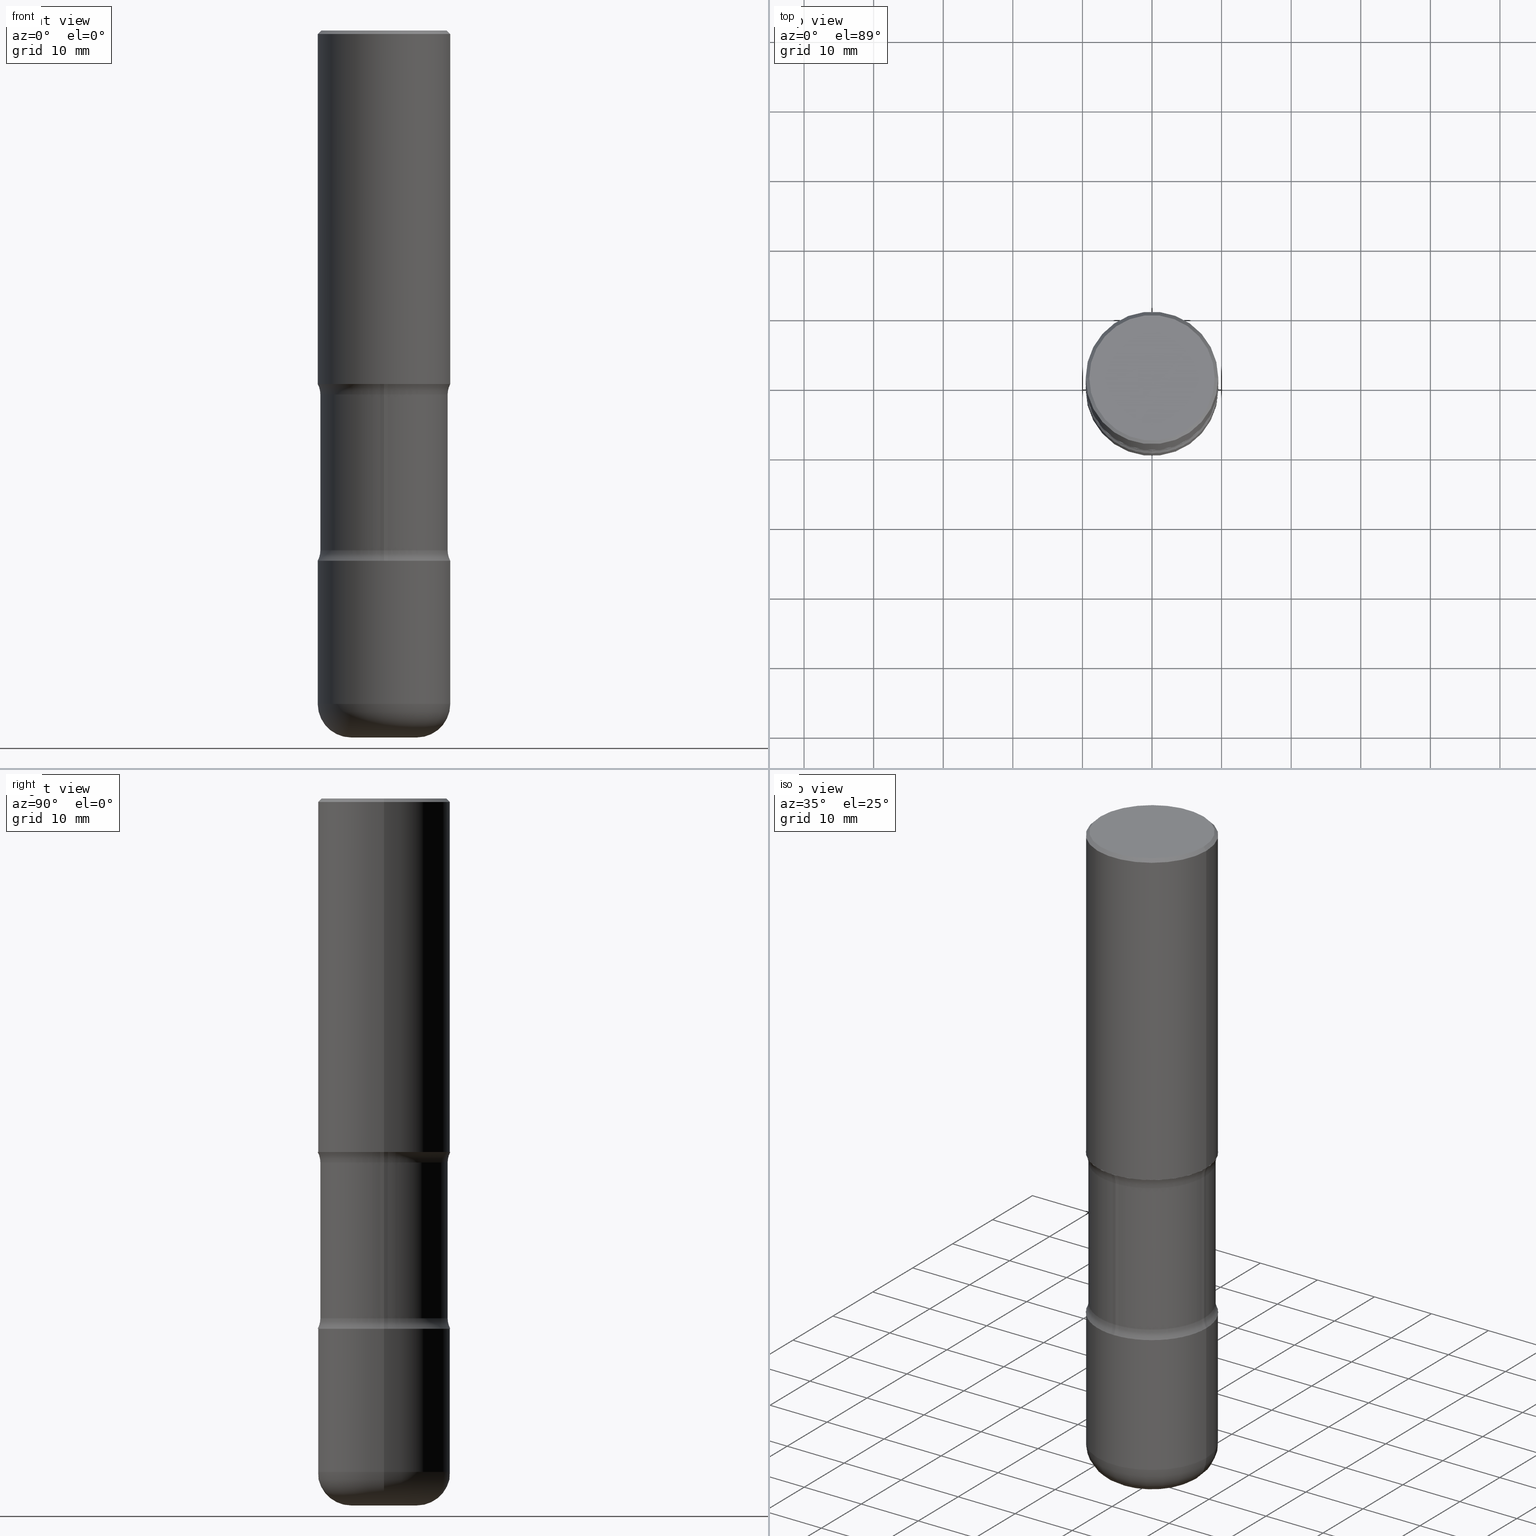
[diagram: canonical four-view strip — front | top / right | iso, engineering-drawing reading convention]
A machine part, canonical four-view strip (front | top / right | iso — engineering-drawing reading convention). The complete STEP part file that produces these views, byte-faithful:
ISO-10303-21;
HEADER;
FILE_DESCRIPTION (( 'STEP AP203' ),
    '1' );
FILE_NAME ('36251.STEP',
    '2023-03-11T07:12:51',
    ( '' ),
    ( '' ),
    'SwSTEP 2.0',
    'SolidWorks 2022',
    '' );
FILE_SCHEMA (( 'CONFIG_CONTROL_DESIGN' ));
ENDSEC;

DATA;
#1 = EDGE_CURVE ( 'NONE', #185, #135, #251, .T. ) ;
#2 = CARTESIAN_POINT ( 'NONE',  ( 2.478951750578622237E-15, 0.3549999999999997047, -1.233073106554165014E-15 ) ) ;
#3 = AXIS2_PLACEMENT_3D ( 'NONE', #378, #122, #369 ) ;
#4 = CIRCLE ( 'NONE', #597, 0.1250000000000001110 ) ;
#5 = CARTESIAN_POINT ( 'NONE',  ( 5.036129278209386779E-29, -7.190257896725955672E-15, -2.059371710435190295 ) ) ;
#6 = AXIS2_PLACEMENT_3D ( 'NONE', #227, #437, #101 ) ;
#7 = LOCAL_TIME ( 2, 12, 51.00000000000000000, #295 ) ;
#8 = ORIENTED_EDGE ( 'NONE', *, *, #184, .F. ) ;
#9 = CYLINDRICAL_SURFACE ( 'NONE', #773, 0.3599999999999999312 ) ;
#10 = CARTESIAN_POINT ( 'NONE',  ( -0.1850000000000001088, -1.198803983983620001E-14, -3.810000000000000053 ) ) ;
#11 = EDGE_CURVE ( 'NONE', #777, #593, #586, .T. ) ;
#12 = DIRECTION ( 'NONE',  ( 1.000000000000000000, -6.982962677686266711E-15, 0.000000000000000000 ) ) ;
#13 = ORIENTED_EDGE ( 'NONE', *, *, #391, .F. ) ;
#14 = CARTESIAN_POINT ( 'NONE',  ( 4.888029293089666332E-29, -6.987127556427373647E-15, -2.000000000000000000 ) ) ;
#15 = DIRECTION ( 'NONE',  ( -1.000000000000000000, 6.982962677686266711E-15, 0.000000000000000000 ) ) ;
#16 = CARTESIAN_POINT ( 'NONE',  ( 5.036129278209386779E-29, -7.190257896725955672E-15, -2.059371710435190295 ) ) ;
#17 = PLANE ( 'NONE',  #662 ) ;
#18 = EDGE_LOOP ( 'NONE', ( #125, #375, #89, #467 ) ) ;
#19 = CARTESIAN_POINT ( 'NONE',  ( 0.1850000000000001088, -1.459439199636434728E-14, -3.810000000000000053 ) ) ;
#20 = AXIS2_PLACEMENT_3D ( 'NONE', #103, #428, #364 ) ;
#21 = AXIS2_PLACEMENT_3D ( 'NONE', #52, #254, #134 ) ;
#22 = ORIENTED_EDGE ( 'NONE', *, *, #87, .T. ) ;
#23 = CARTESIAN_POINT ( 'NONE',  ( 4.890937612370273194E-29, -6.982962677686291165E-15, -2.000000000000000000 ) ) ;
#24 = EDGE_LOOP ( 'NONE', ( #193, #304, #164, #190 ) ) ;
#25 = ADVANCED_FACE ( 'NONE', ( #505 ), #751, .F. ) ;
#26 = ORIENTED_EDGE ( 'NONE', *, *, #626, .F. ) ;
#27 = EDGE_LOOP ( 'NONE', ( #113, #22 ) ) ;
#28 = CARTESIAN_POINT ( 'NONE',  ( 2.618611004132398926E-15, 0.3749999999999931166, -2.000000000000001332 ) ) ;
#29 = DIRECTION ( 'NONE',  ( -1.000000000000000000, 7.105427357601003436E-15, 0.000000000000000000 ) ) ;
#30 = CC_DESIGN_PERSON_AND_ORGANIZATION_ASSIGNMENT ( #438, #48, ( #637 ) ) ;
#31 = ORIENTED_EDGE ( 'NONE', *, *, #78, .F. ) ;
#32 = DIRECTION ( 'NONE',  ( -2.445468806185136597E-29, 3.491481338843145583E-15, 1.000000000000000000 ) ) ;
#33 = AXIS2_PLACEMENT_3D ( 'NONE', #474, #388, #536 ) ;
#34 = AXIS2_PLACEMENT_3D ( 'NONE', #98, #413, #729 ) ;
#35 = EDGE_CURVE ( 'NONE', #432, #510, #237, .T. ) ;
#36 = CYLINDRICAL_SURFACE ( 'NONE', #679, 0.3750000000000000555 ) ;
#37 = DIRECTION ( 'NONE',  ( 6.982962677686265133E-15, 1.000000000000000000, -3.794233324533699901E-15 ) ) ;
#38 = CALENDAR_DATE ( 2023, 11, 3 ) ;
#39 = ORIENTED_EDGE ( 'NONE', *, *, #147, .T. ) ;
#40 = AXIS2_PLACEMENT_3D ( 'NONE', #733, #421, #231 ) ;
#41 = CIRCLE ( 'NONE', #786, 0.1249999999999999584 ) ;
#42 = AXIS2_PLACEMENT_3D ( 'NONE', #303, #425, #99 ) ;
#43 = EDGE_CURVE ( 'NONE', #538, #443, #95, .T. ) ;
#44 = ORIENTED_EDGE ( 'NONE', *, *, #770, .F. ) ;
#45 = DESIGN_CONTEXT ( 'detailed design', #482, 'design' ) ;
#46 = DIRECTION ( 'NONE',  ( 2.448377125465743738E-29, -3.487316460102062312E-15, -1.000000000000000000 ) ) ;
#47 = ORIENTED_EDGE ( 'NONE', *, *, #683, .F. ) ;
#48 = PERSON_AND_ORGANIZATION_ROLE ( 'creator' ) ;
#49 = ORIENTED_EDGE ( 'NONE', *, *, #630, .T. ) ;
#50 = PERSON_AND_ORGANIZATION ( #798, #433 ) ;
#51 =( NAMED_UNIT ( * ) PLANE_ANGLE_UNIT ( ) SI_UNIT ( $, .RADIAN. ) );
#52 = CARTESIAN_POINT ( 'NONE',  ( 5.036129278209386779E-29, -7.190257896725955672E-15, -2.059371710435190295 ) ) ;
#53 = VECTOR ( 'NONE', #420, 39.37007874015748143 ) ;
#54 = AXIS2_PLACEMENT_3D ( 'NONE', #745, #178, #444 ) ;
#55 = EDGE_LOOP ( 'NONE', ( #271, #352 ) ) ;
#56 = EDGE_CURVE ( 'NONE', #135, #538, #582, .T. ) ;
#57 = DIRECTION ( 'NONE',  ( 1.000000000000000000, -6.982962677686265133E-15, 0.000000000000000000 ) ) ;
#58 = DIRECTION ( 'NONE',  ( -1.000000000000000000, 7.105427357601001859E-15, 0.000000000000000000 ) ) ;
#59 = ORIENTED_EDGE ( 'NONE', *, *, #162, .T. ) ;
#60 = DIRECTION ( 'NONE',  ( 1.000000000000000000, -6.982962677686265922E-15, 4.876231632511992107E-29 ) ) ;
#61 = CARTESIAN_POINT ( 'NONE',  ( 0.000000000000000000, 0.000000000000000000, 0.000000000000000000 ) ) ;
#62 = CIRCLE ( 'NONE', #690, 0.3599999999999998757 ) ;
#63 = CARTESIAN_POINT ( 'NONE',  ( 4.888029293089666332E-29, -6.987127556427373647E-15, -2.000000000000000000 ) ) ;
#64 = ADVANCED_FACE ( 'NONE', ( #68 ), #208, .F. ) ;
#65 = DIRECTION ( 'NONE',  ( 2.448377125465743738E-29, -3.487316460102062312E-15, -1.000000000000000000 ) ) ;
#66 = CIRCLE ( 'NONE', #530, 0.3750000000000000555 ) ;
#67 = FACE_OUTER_BOUND ( 'NONE', #615, .T. ) ;
#68 = FACE_OUTER_BOUND ( 'NONE', #649, .T. ) ;
#69 = VERTEX_POINT ( 'NONE', #768 ) ;
#70 = LINE ( 'NONE', #445, #517 ) ;
#71 = ORIENTED_EDGE ( 'NONE', *, *, #371, .T. ) ;
#72 = DIRECTION ( 'NONE',  ( 2.445468806185136597E-29, -3.491481338843145583E-15, -1.000000000000000000 ) ) ;
#73 = EDGE_LOOP ( 'NONE', ( #117, #108 ) ) ;
#74 = CARTESIAN_POINT ( 'NONE',  ( -0.1850000000000001366, -1.164471496805420332E-14, -4.000000000000000888 ) ) ;
#75 = DATE_TIME_ROLE ( 'classification_date' ) ;
#76 = ORIENTED_EDGE ( 'NONE', *, *, #429, .F. ) ;
#77 = DIRECTION ( 'NONE',  ( -2.445468806185136597E-29, 3.491481338843145583E-15, 1.000000000000000000 ) ) ;
#78 = EDGE_CURVE ( 'NONE', #244, #480, #713, .T. ) ;
#79 = PERSON_AND_ORGANIZATION ( #798, #433 ) ;
#80 = ORIENTED_EDGE ( 'NONE', *, *, #11, .T. ) ;
#81 = CARTESIAN_POINT ( 'NONE',  ( 7.191214752716296204E-29, -1.026714879748977264E-14, -2.940628289564810149 ) ) ;
#82 = AXIS2_PLACEMENT_3D ( 'NONE', #739, #439, #799 ) ;
#83 = AXIS2_PLACEMENT_3D ( 'NONE', #503, #607, #181 ) ;
#84 = DIRECTION ( 'NONE',  ( -2.445468806185136597E-29, 3.491481338843145583E-15, 1.000000000000000000 ) ) ;
#85 = COORDINATED_UNIVERSAL_TIME_OFFSET ( 5, 0, .BEHIND. ) ;
#86 = SECURITY_CLASSIFICATION ( '', '', #619 ) ;
#87 = EDGE_CURVE ( 'NONE', #464, #749, #198, .T. ) ;
#88 = CARTESIAN_POINT ( 'NONE',  ( 5.036129278209386779E-29, -7.190257896725955672E-15, -2.059371710435190295 ) ) ;
#89 = ORIENTED_EDGE ( 'NONE', *, *, #222, .T. ) ;
#90 = APPROVAL_ROLE ( '' ) ;
#91 = DIRECTION ( 'NONE',  ( 2.445468806185136597E-29, -3.491481338843145583E-15, -1.000000000000000000 ) ) ;
#92 = DIRECTION ( 'NONE',  ( 1.000000000000000000, -6.982962677686270655E-15, 0.000000000000000000 ) ) ;
#93 = CYLINDRICAL_SURFACE ( 'NONE', #83, 0.3599999999999999312 ) ;
#94 = ADVANCED_FACE ( 'NONE', ( #652 ), #17, .F. ) ;
#95 = CIRCLE ( 'NONE', #688, 0.3749999999999996669 ) ;
#96 = CIRCLE ( 'NONE', #199, 0.1900000000000001132 ) ;
#97 = CIRCLE ( 'NONE', #501, 0.3750000000000000555 ) ;
#98 = CARTESIAN_POINT ( 'NONE',  ( 4.890937612370273194E-29, -6.982962677686291165E-15, -2.000000000000000000 ) ) ;
#99 = DIRECTION ( 'NONE',  ( 1.000000000000000000, -6.982962677686266711E-15, 0.000000000000000000 ) ) ;
#100 = LINE ( 'NONE', #785, #528 ) ;
#101 = DIRECTION ( 'NONE',  ( 1.000000000000000000, -6.982962677686266711E-15, 0.000000000000000000 ) ) ;
#102 = DATE_AND_TIME ( #669, #7 ) ;
#103 = CARTESIAN_POINT ( 'NONE',  ( 0.000000000000000000, 0.000000000000000000, 0.000000000000000000 ) ) ;
#104 = ORIENTED_EDGE ( 'NONE', *, *, #651, .T. ) ;
#105 = FACE_OUTER_BOUND ( 'NONE', #55, .T. ) ;
#106 = ADVANCED_FACE ( 'NONE', ( #270 ), #252, .F. ) ;
#107 = CARTESIAN_POINT ( 'NONE',  ( 0.3749999999999996669, -2.642516375941185662E-15, -0.02000000000000007674 ) ) ;
#108 = ORIENTED_EDGE ( 'NONE', *, *, #643, .F. ) ;
#109 = AXIS2_PLACEMENT_3D ( 'NONE', #775, #219, #481 ) ;
#110 = VECTOR ( 'NONE', #631, 39.37007874015748143 ) ;
#111 = FACE_OUTER_BOUND ( 'NONE', #337, .T. ) ;
#112 = CARTESIAN_POINT ( 'NONE',  ( 1.060475785271074914E-27, -1.514078366162024710E-13, -43.36492792665745100 ) ) ;
#113 = ORIENTED_EDGE ( 'NONE', *, *, #764, .T. ) ;
#114 = CARTESIAN_POINT ( 'NONE',  ( -3.131554243005659264E-46, 4.471029511141341874E-32, 1.280553747030123384E-17 ) ) ;
#115 = CARTESIAN_POINT ( 'NONE',  ( 0.4849999999999998757, -1.365388569616761104E-14, -2.940628289564810149 ) ) ;
#116 = PERSON_AND_ORGANIZATION_ROLE ( 'design_supplier' ) ;
#117 = ORIENTED_EDGE ( 'NONE', *, *, #595, .F. ) ;
#118 = EDGE_LOOP ( 'NONE', ( #435, #328, #131, #315 ) ) ;
#119 = ORIENTED_EDGE ( 'NONE', *, *, #429, .T. ) ;
#120 = ADVANCED_FACE ( 'NONE', ( #763 ), #310, .F. ) ;
#121 = ORIENTED_EDGE ( 'NONE', *, *, #272, .F. ) ;
#122 = DIRECTION ( 'NONE',  ( 2.448377125465743738E-29, -3.487316460102062312E-15, -1.000000000000000000 ) ) ;
#123 = APPROVAL_DATE_TIME ( #153, #290 ) ;
#124 = CIRCLE ( 'NONE', #692, 0.1249999999999999584 ) ;
#125 = ORIENTED_EDGE ( 'NONE', *, *, #147, .F. ) ;
#126 = DIRECTION ( 'NONE',  ( 1.000000000000000000, -6.982962677686265922E-15, 4.876176775795935793E-29 ) ) ;
#127 = CARTESIAN_POINT ( 'NONE',  ( -0.4849999999999998757, -3.744125628289471443E-15, -2.059371710435190295 ) ) ;
#128 = CARTESIAN_POINT ( 'NONE',  ( -3.131554243005659264E-46, 4.471029511141341874E-32, 1.280553747030123384E-17 ) ) ;
#129 = ADVANCED_FACE ( 'NONE', ( #265, #392 ), #641, .F. ) ;
#130 = DIRECTION ( 'NONE',  ( 0.9993908270190957621, -6.978169709227539121E-15, -0.03489949670250019204 ) ) ;
#131 = ORIENTED_EDGE ( 'NONE', *, *, #683, .T. ) ;
#132 = EDGE_LOOP ( 'NONE', ( #803, #744 ) ) ;
#133 = DIRECTION ( 'NONE',  ( 1.000000000000000000, -6.982962677686265133E-15, 4.883557194083112340E-29 ) ) ;
#134 = DIRECTION ( 'NONE',  ( 1.000000000000000000, -6.982962677686265133E-15, 4.883557194083112340E-29 ) ) ;
#135 = VERTEX_POINT ( 'NONE', #191 ) ;
#136 = AXIS2_PLACEMENT_3D ( 'NONE', #587, #91, #756 ) ;
#137 = FACE_OUTER_BOUND ( 'NONE', #18, .T. ) ;
#138 = DIRECTION ( 'NONE',  ( -6.982962677686265133E-15, -1.000000000000000000, 0.000000000000000000 ) ) ;
#139 = EDGE_LOOP ( 'NONE', ( #539, #44 ) ) ;
#140 = CARTESIAN_POINT ( 'NONE',  ( -3.327341528919141311E-15, -0.4850000000000070366, -2.059371710435188518 ) ) ;
#141 = CARTESIAN_POINT ( 'NONE',  ( 0.000000000000000000, 0.000000000000000000, 0.000000000000000000 ) ) ;
#142 = EDGE_CURVE ( 'NONE', #593, #777, #448, .T. ) ;
#143 = DIRECTION ( 'NONE',  ( -2.445468806185136597E-29, 3.491481338843145583E-15, 1.000000000000000000 ) ) ;
#144 = EDGE_LOOP ( 'NONE', ( #723, #241, #121, #534 ) ) ;
#145 = DIRECTION ( 'NONE',  ( 1.000000000000000000, -6.982962677686267499E-15, 0.000000000000000000 ) ) ;
#146 = ORIENTED_EDGE ( 'NONE', *, *, #667, .T. ) ;
#147 = EDGE_CURVE ( 'NONE', #368, #410, #715, .T. ) ;
#148 = CARTESIAN_POINT ( 'NONE',  ( 4.890937612370292426E-31, -6.982962677686317493E-17, -0.02000000000000007674 ) ) ;
#149 = AXIS2_PLACEMENT_3D ( 'NONE', #211, #470, #714 ) ;
#150 = AXIS2_PLACEMENT_3D ( 'NONE', #621, #314, #802 ) ;
#151 = AXIS2_PLACEMENT_3D ( 'NONE', #157, #414, #37 ) ;
#152 = APPROVAL_STATUS ( 'not_yet_approved' ) ;
#153 = DATE_AND_TIME ( #776, #353 ) ;
#154 = ADVANCED_FACE ( 'NONE', ( #320 ), #9, .T. ) ;
#155 = VERTEX_POINT ( 'NONE', #74 ) ;
#156 = PLANE ( 'NONE',  #34 ) ;
#157 = CARTESIAN_POINT ( 'NONE',  ( 5.033393630818961472E-29, -7.194175499492426092E-15, -2.059371710435190295 ) ) ;
#158 = EDGE_LOOP ( 'NONE', ( #562, #533, #792, #485 ) ) ;
#159 = CIRCLE ( 'NONE', #288, 0.3599999999999999867 ) ;
#160 = CIRCLE ( 'NONE', #42, 0.3750000000000000555 ) ;
#161 = APPLICATION_PROTOCOL_DEFINITION ( 'international standard', 'config_control_design', 1994, #482 ) ;
#162 = EDGE_CURVE ( 'NONE', #794, #155, #319, .T. ) ;
#163 = CARTESIAN_POINT ( 'NONE',  ( 0.3750000000000000555, -9.601573681818640393E-15, -2.000000000000000000 ) ) ;
#164 = ORIENTED_EDGE ( 'NONE', *, *, #520, .T. ) ;
#165 = LINE ( 'NONE', #664, #229 ) ;
#166 = CARTESIAN_POINT ( 'NONE',  ( -0.3599999999999999867, -7.759551853091235175E-15, -2.940628289564810149 ) ) ;
#167 = CARTESIAN_POINT ( 'NONE',  ( 7.191214752716296204E-29, -1.026714879748977264E-14, -2.940628289564810149 ) ) ;
#168 = DATE_TIME_ROLE ( 'creation_date' ) ;
#169 = CARTESIAN_POINT ( 'NONE',  ( 4.890937612370292426E-31, -6.982962677686317493E-17, -0.02000000000000007674 ) ) ;
#170 = VECTOR ( 'NONE', #632, 39.37007874015748143 ) ;
#171 = ORIENTED_EDGE ( 'NONE', *, *, #43, .F. ) ;
#172 = TOROIDAL_SURFACE ( 'NONE', #82, 0.4849999999999998757, 0.1249999999999999584 ) ;
#173 = AXIS2_PLACEMENT_3D ( 'NONE', #88, #347, #145 ) ;
#174 = FACE_OUTER_BOUND ( 'NONE', #509, .T. ) ;
#175 = CARTESIAN_POINT ( 'NONE',  ( 3.386736898677909800E-15, 0.4849999999999896616, -2.940628289564811926 ) ) ;
#176 = EDGE_CURVE ( 'NONE', #368, #443, #292, .T. ) ;
#177 = EDGE_CURVE ( 'NONE', #366, #460, #100, .T. ) ;
#178 = DIRECTION ( 'NONE',  ( 2.445468806185136597E-29, -3.491481338843145583E-15, -1.000000000000000000 ) ) ;
#179 = PRODUCT_RELATED_PRODUCT_CATEGORY ( 'detail', '', ( #318 ) ) ;
#180 = FACE_OUTER_BOUND ( 'NONE', #613, .T. ) ;
#181 = DIRECTION ( 'NONE',  ( 6.982962677686265133E-15, 1.000000000000000000, -3.035386659626959526E-15 ) ) ;
#182 = CIRCLE ( 'NONE', #499, 0.1249999999999999584 ) ;
#183 = AXIS2_PLACEMENT_3D ( 'NONE', #167, #426, #610 ) ;
#184 = EDGE_CURVE ( 'NONE', #706, #442, #724, .T. ) ;
#185 = VERTEX_POINT ( 'NONE', #163 ) ;
#186 = DIRECTION ( 'NONE',  ( -1.000000000000000000, 6.982962677686265922E-15, -4.876176775795935793E-29 ) ) ;
#187 = DIRECTION ( 'NONE',  ( 1.000000000000000000, -6.982962677686264344E-15, 0.000000000000000000 ) ) ;
#188 = FACE_OUTER_BOUND ( 'NONE', #332, .T. ) ;
#189 = PERSON_AND_ORGANIZATION ( #798, #433 ) ;
#190 = ORIENTED_EDGE ( 'NONE', *, *, #667, .F. ) ;
#191 = CARTESIAN_POINT ( 'NONE',  ( -0.3749999999999999445, -8.618608931312003514E-16, -2.000000000000000000 ) ) ;
#192 = CARTESIAN_POINT ( 'NONE',  ( 7.191214752716296204E-29, -1.026714879748977264E-14, -2.940628289564810149 ) ) ;
#193 = ORIENTED_EDGE ( 'NONE', *, *, #531, .F. ) ;
#194 = DIRECTION ( 'NONE',  ( 7.105427357601001859E-15, 1.000000000000000000, -3.491481338843145583E-15 ) ) ;
#195 = ORIENTED_EDGE ( 'NONE', *, *, #707, .T. ) ;
#196 = DIRECTION ( 'NONE',  ( -2.445468806185136597E-29, 3.491481338843145583E-15, 1.000000000000000000 ) ) ;
#197 = ORIENTED_EDGE ( 'NONE', *, *, #1, .T. ) ;
#198 = CIRCLE ( 'NONE', #296, 0.1475000000000001033 ) ;
#199 = AXIS2_PLACEMENT_3D ( 'NONE', #10, #194, #29 ) ;
#200 = CARTESIAN_POINT ( 'NONE',  ( -3.327341528919120012E-15, -0.4850000000000101452, -2.940628289564808373 ) ) ;
#201 = CIRCLE ( 'NONE', #173, 0.3599999999999998757 ) ;
#202 = CC_DESIGN_APPROVAL ( #671, ( #556 ) ) ;
#203 = EDGE_LOOP ( 'NONE', ( #596, #540, #264, #639 ) ) ;
#204 = CARTESIAN_POINT ( 'NONE',  ( -7.161073312030320646E-28, -1.305247730850476631E-13, -4.000000000000000000 ) ) ;
#205 = ORIENTED_EDGE ( 'NONE', *, *, #35, .F. ) ;
#206 = FACE_OUTER_BOUND ( 'NONE', #209, .T. ) ;
#207 = ADVANCED_FACE ( 'NONE', ( #105 ), #716, .F. ) ;
#208 = PLANE ( 'NONE',  #33 ) ;
#209 = EDGE_LOOP ( 'NONE', ( #59, #276, #213, #767 ) ) ;
#210 = DIRECTION ( 'NONE',  ( 1.000000000000000000, -6.982962677686266711E-15, 0.000000000000000000 ) ) ;
#211 = CARTESIAN_POINT ( 'NONE',  ( 9.317236151565370389E-29, -1.330254390099238573E-14, -3.810000000000000053 ) ) ;
#212 = MANIFOLD_SOLID_BREP ( 'Body-Move/Copy2[4]', #678 ) ;
#213 = ORIENTED_EDGE ( 'NONE', *, *, #658, .F. ) ;
#214 = ORIENTED_EDGE ( 'NONE', *, *, #717, .T. ) ;
#215 = VECTOR ( 'NONE', #279, 39.37007874015748143 ) ;
#216 = ORIENTED_EDGE ( 'NONE', *, *, #550, .F. ) ;
#217 = AXIS2_PLACEMENT_3D ( 'NONE', #508, #32, #273 ) ;
#218 = EDGE_LOOP ( 'NONE', ( #31, #214, #476, #504 ) ) ;
#219 = DIRECTION ( 'NONE',  ( 2.438088387897960049E-29, -3.491481338843145188E-15, -1.000000000000000000 ) ) ;
#220 = ADVANCED_FACE ( 'NONE', ( #411 ), #515, .T. ) ;
#221 = EDGE_LOOP ( 'NONE', ( #340, #525, #13, #711 ) ) ;
#222 = EDGE_CURVE ( 'NONE', #443, #538, #551, .T. ) ;
#223 = DIRECTION ( 'NONE',  ( -2.445468806185136597E-29, 3.491481338843145583E-15, 1.000000000000000000 ) ) ;
#224 = LINE ( 'NONE', #486, #774 ) ;
#225 = DIRECTION ( 'NONE',  ( -2.445468806185136597E-29, 3.491481338843145583E-15, 1.000000000000000000 ) ) ;
#226 = ADVANCED_FACE ( 'NONE', ( #557 ), #172, .F. ) ;
#227 = CARTESIAN_POINT ( 'NONE',  ( 4.890937612370273194E-29, -6.982962677686291165E-15, -2.000000000000000000 ) ) ;
#228 = AXIS2_PLACEMENT_3D ( 'NONE', #175, #468, #138 ) ;
#229 = VECTOR ( 'NONE', #668, 39.37007874015748143 ) ;
#230 = CIRCLE ( 'NONE', #343, 0.1850000000000001366 ) ;
#231 = DIRECTION ( 'NONE',  ( 1.000000000000000000, -6.982962677686267499E-15, 0.000000000000000000 ) ) ;
#232 = ORIENTED_EDGE ( 'NONE', *, *, #56, .F. ) ;
#233 = CARTESIAN_POINT ( 'NONE',  ( 9.317236151565370389E-29, -1.330254390099238573E-14, -3.810000000000000053 ) ) ;
#234 = DIRECTION ( 'NONE',  ( -2.445468806185136877E-29, 3.491481338843145188E-15, 1.000000000000000000 ) ) ;
#235 = COORDINATED_UNIVERSAL_TIME_OFFSET ( 5, 0, .BEHIND. ) ;
#236 = DIRECTION ( 'NONE',  ( -2.445468806185136597E-29, 3.491481338843145583E-15, 1.000000000000000000 ) ) ;
#237 = CIRCLE ( 'NONE', #228, 0.1249999999999999584 ) ;
#238 = AXIS2_PLACEMENT_3D ( 'NONE', #81, #77, #336 ) ;
#239 = ADVANCED_FACE ( 'NONE', ( #743 ), #416, .F. ) ;
#240 = AXIS2_PLACEMENT_3D ( 'NONE', #385, #399, #633 ) ;
#241 = ORIENTED_EDGE ( 'NONE', *, *, #78, .T. ) ;
#242 = CC_DESIGN_PERSON_AND_ORGANIZATION_ASSIGNMENT ( #684, #116, ( #637 ) ) ;
#243 = CARTESIAN_POINT ( 'NONE',  ( -0.1474999999999999645, -1.293593836041385578E-14, -3.999999999999999556 ) ) ;
#244 = VERTEX_POINT ( 'NONE', #748 ) ;
#245 = DIRECTION ( 'NONE',  ( -1.000000000000000000, 6.982962677686266711E-15, 0.000000000000000000 ) ) ;
#246 = DIRECTION ( 'NONE',  ( 1.000000000000000000, -6.982962677686270655E-15, 0.000000000000000000 ) ) ;
#247 = DIRECTION ( 'NONE',  ( 7.105427357601001859E-15, 1.000000000000000000, -3.491481338843145583E-15 ) ) ;
#248 = ORIENTED_EDGE ( 'NONE', *, *, #495, .T. ) ;
#249 = ADVANCED_FACE ( 'NONE', ( #317 ), #576, .F. ) ;
#250 = CYLINDRICAL_SURFACE ( 'NONE', #703, 0.3749999999999998335 ) ;
#251 = CIRCLE ( 'NONE', #542, 0.3750000000000000555 ) ;
#252 = PLANE ( 'NONE',  #477 ) ;
#253 = AXIS2_PLACEMENT_3D ( 'NONE', #370, #46, #558 ) ;
#254 = DIRECTION ( 'NONE',  ( -2.445468806185136597E-29, 3.491481338843145583E-15, 1.000000000000000000 ) ) ;
#255 = CIRCLE ( 'NONE', #590, 0.1475000000000001033 ) ;
#256 = LOCAL_TIME ( 2, 12, 51.00000000000000000, #235 ) ;
#257 = LOCAL_TIME ( 2, 12, 51.00000000000000000, #85 ) ;
#258 = DIRECTION ( 'NONE',  ( 6.982962677686265133E-15, 1.000000000000000000, -3.035386659626959132E-15 ) ) ;
#259 = CC_DESIGN_DATE_AND_TIME_ASSIGNMENT ( #498, #168, ( #556 ) ) ;
#260 = MECHANICAL_CONTEXT ( 'NONE', #695, 'mechanical' ) ;
#261 = DIRECTION ( 'NONE',  ( -2.445468806185136597E-29, 3.491481338843145583E-15, 1.000000000000000000 ) ) ;
#262 = CARTESIAN_POINT ( 'NONE',  ( 7.191042080826115211E-29, -1.026739607346438549E-14, -2.940628289564810149 ) ) ;
#263 = CARTESIAN_POINT ( 'NONE',  ( 7.336406418555408669E-29, -1.047444401652943478E-14, -2.999999999999999556 ) ) ;
#264 = ORIENTED_EDGE ( 'NONE', *, *, #601, .T. ) ;
#265 = FACE_OUTER_BOUND ( 'NONE', #139, .T. ) ;
#266 = CARTESIAN_POINT ( 'NONE',  ( 0.3599999999999998757, -9.704124460693012319E-15, -2.059371710435190295 ) ) ;
#267 = CARTESIAN_POINT ( 'NONE',  ( 2.513866563967127250E-15, 0.3599999999999897171, -2.940628289564811038 ) ) ;
#268 = DIRECTION ( 'NONE',  ( 6.982962677686265922E-15, 1.000000000000000000, -3.487316460102062312E-15 ) ) ;
#269 = EDGE_LOOP ( 'NONE', ( #440, #146, #458, #393 ) ) ;
#270 = FACE_OUTER_BOUND ( 'NONE', #132, .T. ) ;
#271 = ORIENTED_EDGE ( 'NONE', *, *, #391, .T. ) ;
#272 = EDGE_CURVE ( 'NONE', #510, #480, #159, .T. ) ;
#273 = DIRECTION ( 'NONE',  ( 1.000000000000000000, -6.982962677686266711E-15, 0.000000000000000000 ) ) ;
#274 = AXIS2_PLACEMENT_3D ( 'NONE', #302, #299, #359 ) ;
#275 = CIRCLE ( 'NONE', #666, 0.3750000000000000555 ) ;
#276 = ORIENTED_EDGE ( 'NONE', *, *, #531, .T. ) ;
#277 = DIRECTION ( 'NONE',  ( 1.000000000000000000, -6.982962677686264344E-15, 0.000000000000000000 ) ) ;
#278 = ORIENTED_EDGE ( 'NONE', *, *, #732, .F. ) ;
#279 = DIRECTION ( 'NONE',  ( -0.9993908270190957621, 6.856857904024558837E-15, -0.03489949670250019204 ) ) ;
#280 = EDGE_LOOP ( 'NONE', ( #804, #473, #766, #644 ) ) ;
#281 = DATE_AND_TIME ( #38, #257 ) ;
#282 = ORIENTED_EDGE ( 'NONE', *, *, #222, .F. ) ;
#283 = DIRECTION ( 'NONE',  ( -2.445468806185136597E-29, 3.491481338843145583E-15, 1.000000000000000000 ) ) ;
#284 = ADVANCED_FACE ( 'NONE', ( #188 ), #624, .F. ) ;
#285 = COORDINATED_UNIVERSAL_TIME_OFFSET ( 5, 0, .BEHIND. ) ;
#286 = DIRECTION ( 'NONE',  ( -2.445468806185136597E-29, 3.491481338843145583E-15, 1.000000000000000000 ) ) ;
#287 = AXIS2_PLACEMENT_3D ( 'NONE', #778, #661, #502 ) ;
#288 = AXIS2_PLACEMENT_3D ( 'NONE', #262, #461, #258 ) ;
#289 = VECTOR ( 'NONE', #734, 39.37007874015748143 ) ;
#290 = APPROVAL ( #152, 'UNSPECIFIED' ) ;
#291 = LOCAL_TIME ( 2, 12, 51.00000000000000000, #564 ) ;
#292 = LINE ( 'NONE', #771, #53 ) ;
#293 = CARTESIAN_POINT ( 'NONE',  ( -2.521233014180964375E-15, -0.3600000000000102562, -2.940628289564808817 ) ) ;
#294 = CARTESIAN_POINT ( 'NONE',  ( 3.386736898677888501E-15, 0.4849999999999927147, -2.059371710435191627 ) ) ;
#295 = COORDINATED_UNIVERSAL_TIME_OFFSET ( 5, 0, .BEHIND. ) ;
#296 = AXIS2_PLACEMENT_3D ( 'NONE', #345, #143, #398 ) ;
#297 = AXIS2_PLACEMENT_3D ( 'NONE', #527, #457, #629 ) ;
#298 = VECTOR ( 'NONE', #130, 39.37007874015748143 ) ;
#299 = DIRECTION ( 'NONE',  ( -2.445468806185136597E-29, 3.491481338843145583E-15, 1.000000000000000000 ) ) ;
#300 = DIRECTION ( 'NONE',  ( 1.000000000000000000, -6.982962677686265133E-15, 0.000000000000000000 ) ) ;
#301 = DIRECTION ( 'NONE',  ( 1.000000000000000000, -6.982962677686266711E-15, 0.000000000000000000 ) ) ;
#302 = CARTESIAN_POINT ( 'NONE',  ( 7.336406418555408669E-29, -1.047444401652943478E-14, -2.999999999999999556 ) ) ;
#303 = CARTESIAN_POINT ( 'NONE',  ( 7.336406418555408669E-29, -1.047444401652943478E-14, -2.999999999999999556 ) ) ;
#304 = ORIENTED_EDGE ( 'NONE', *, *, #770, .T. ) ;
#305 = EDGE_CURVE ( 'NONE', #415, #432, #463, .T. ) ;
#306 = DIRECTION ( 'NONE',  ( 1.000000000000000000, -6.982962677686265922E-15, 4.876231632511992107E-29 ) ) ;
#307 = EDGE_LOOP ( 'NONE', ( #195, #39 ) ) ;
#308 = DIRECTION ( 'NONE',  ( -1.000000000000000000, 6.982962677686265922E-15, -4.883557194083112340E-29 ) ) ;
#309 = APPROVAL_ROLE ( '' ) ;
#310 = TOROIDAL_SURFACE ( 'NONE', #341, 0.4849999999999998757, 0.1250000000000000555 ) ;
#311 = CIRCLE ( 'NONE', #418, 0.1250000000000000278 ) ;
#312 = AXIS2_PLACEMENT_3D ( 'NONE', #63, #325, #579 ) ;
#313 = DIRECTION ( 'NONE',  ( -2.445468806185136597E-29, 3.491481338843145583E-15, 1.000000000000000000 ) ) ;
#314 = DIRECTION ( 'NONE',  ( 2.448377125465743738E-29, -3.487316460102062312E-15, -1.000000000000000000 ) ) ;
#315 = ORIENTED_EDGE ( 'NONE', *, *, #351, .F. ) ;
#316 = EDGE_CURVE ( 'NONE', #415, #480, #182, .T. ) ;
#317 = FACE_OUTER_BOUND ( 'NONE', #334, .T. ) ;
#318 = PRODUCT ( '36251', '36251', '', ( #260 ) ) ;
#319 = CIRCLE ( 'NONE', #478, 0.1850000000000001366 ) ;
#320 = FACE_OUTER_BOUND ( 'NONE', #344, .T. ) ;
#321 = SHAPE_DEFINITION_REPRESENTATION ( #560, #523 ) ;
#322 = AXIS2_PLACEMENT_3D ( 'NONE', #541, #348, #728 ) ;
#323 = DIRECTION ( 'NONE',  ( 1.000000000000000000, -6.982962677686265922E-15, 4.876176775795935793E-29 ) ) ;
#324 =( GEOMETRIC_REPRESENTATION_CONTEXT ( 3 ) GLOBAL_UNCERTAINTY_ASSIGNED_CONTEXT ( ( #675 ) ) GLOBAL_UNIT_ASSIGNED_CONTEXT ( ( #805, #51, #567 ) ) REPRESENTATION_CONTEXT ( 'NONE', 'WORKASPACE' ) );
#325 = DIRECTION ( 'NONE',  ( 2.448377125465743738E-29, -3.487316460102062312E-15, -1.000000000000000000 ) ) ;
#326 = VERTEX_POINT ( 'NONE', #708 ) ;
#327 = DIRECTION ( 'NONE',  ( 2.438088387897960049E-29, -3.491481338843145188E-15, -1.000000000000000000 ) ) ;
#328 = ORIENTED_EDGE ( 'NONE', *, *, #747, .T. ) ;
#329 = LINE ( 'NONE', #382, #110 ) ;
#330 = DIRECTION ( 'NONE',  ( 6.860497997771527618E-15, 1.000000000000000000, 0.000000000000000000 ) ) ;
#331 = ADVANCED_FACE ( 'NONE', ( #180 ), #250, .T. ) ;
#332 = EDGE_LOOP ( 'NONE', ( #407, #248, #589, #758 ) ) ;
#333 = CARTESIAN_POINT ( 'NONE',  ( 9.781875224740547508E-29, -1.396592535537258391E-14, -4.000000000000000888 ) ) ;
#334 = EDGE_LOOP ( 'NONE', ( #535, #746, #569, #577 ) ) ;
#335 = CARTESIAN_POINT ( 'NONE',  ( 9.317236151565370389E-29, -1.330254390099238573E-14, -3.810000000000000053 ) ) ;
#336 = DIRECTION ( 'NONE',  ( 1.000000000000000000, -6.982962677686267499E-15, 4.883557194083112901E-29 ) ) ;
#337 = EDGE_LOOP ( 'NONE', ( #373, #740, #216, #492 ) ) ;
#338 = CC_DESIGN_DATE_AND_TIME_ASSIGNMENT ( #281, #75, ( #86 ) ) ;
#339 = CARTESIAN_POINT ( 'NONE',  ( -2.469779279197652928E-15, -0.3600000000000138645, -3.994849186499965565 ) ) ;
#340 = ORIENTED_EDGE ( 'NONE', *, *, #658, .T. ) ;
#341 = AXIS2_PLACEMENT_3D ( 'NONE', #454, #588, #133 ) ;
#342 = TOROIDAL_SURFACE ( 'NONE', #149, 0.1850000000000001088, 0.1900000000000001688 ) ;
#343 = AXIS2_PLACEMENT_3D ( 'NONE', #573, #806, #246 ) ;
#344 = EDGE_LOOP ( 'NONE', ( #26, #529, #491, #584 ) ) ;
#345 = CARTESIAN_POINT ( 'NONE',  ( 9.781875224740545266E-29, -1.396592535537258075E-14, -3.999999999999999556 ) ) ;
#346 = EDGE_CURVE ( 'NONE', #432, #415, #404, .T. ) ;
#347 = DIRECTION ( 'NONE',  ( -2.445468806185136597E-29, 3.491481338843145583E-15, 1.000000000000000000 ) ) ;
#348 = DIRECTION ( 'NONE',  ( -2.445468806185136597E-29, 3.491481338843145583E-15, 1.000000000000000000 ) ) ;
#349 = VECTOR ( 'NONE', #400, 39.37007874015748143 ) ;
#350 = CIRCLE ( 'NONE', #796, 0.1900000000000001132 ) ;
#351 = EDGE_CURVE ( 'NONE', #670, #706, #41, .T. ) ;
#352 = ORIENTED_EDGE ( 'NONE', *, *, #570, .T. ) ;
#353 = LOCAL_TIME ( 2, 12, 51.00000000000000000, #285 ) ;
#354 = CARTESIAN_POINT ( 'NONE',  ( -0.3599999999999998757, -4.475365733287755283E-15, -2.059371710435190295 ) ) ;
#355 = ORIENTED_EDGE ( 'NONE', *, *, #184, .T. ) ;
#356 = EDGE_CURVE ( 'NONE', #419, #659, #735, .T. ) ;
#357 = CARTESIAN_POINT ( 'NONE',  ( -0.3549999999999997047, 2.513866563967053491E-15, 1.280553747028377567E-17 ) ) ;
#358 = ADVANCED_FACE ( 'NONE', ( #609 ), #402, .T. ) ;
#359 = DIRECTION ( 'NONE',  ( 1.000000000000000000, -6.982962677686266711E-15, 0.000000000000000000 ) ) ;
#360 = PLANE ( 'NONE',  #625 ) ;
#361 = DIRECTION ( 'NONE',  ( -6.982962677686266711E-15, -1.000000000000000000, 3.491481338843145583E-15 ) ) ;
#362 = APPROVAL_STATUS ( 'not_yet_approved' ) ;
#363 = AXIS2_PLACEMENT_3D ( 'NONE', #128, #383, #60 ) ;
#364 = DIRECTION ( 'NONE',  ( 1.000000000000000000, -6.982962677686265922E-15, 4.876176775795935793E-29 ) ) ;
#365 = AXIS2_PLACEMENT_3D ( 'NONE', #169, #236, #301 ) ;
#366 = VERTEX_POINT ( 'NONE', #549 ) ;
#367 = AXIS2_PLACEMENT_3D ( 'NONE', #192, #313, #455 ) ;
#368 = VERTEX_POINT ( 'NONE', #493 ) ;
#369 = DIRECTION ( 'NONE',  ( 6.982962677686265922E-15, 1.000000000000000000, -3.487316460102062312E-15 ) ) ;
#370 = CARTESIAN_POINT ( 'NONE',  ( 9.772172410070132051E-29, -1.394379795992991707E-14, -3.994849186499966898 ) ) ;
#371 = EDGE_CURVE ( 'NONE', #581, #749, #646, .T. ) ;
#372 = PERSON_AND_ORGANIZATION ( #798, #433 ) ;
#373 = ORIENTED_EDGE ( 'NONE', *, *, #732, .T. ) ;
#374 = DIRECTION ( 'NONE',  ( 6.982962677686265922E-15, 1.000000000000000000, -3.642463991552350169E-15 ) ) ;
#375 = ORIENTED_EDGE ( 'NONE', *, *, #176, .T. ) ;
#376 = EDGE_CURVE ( 'NONE', #412, #622, #389, .T. ) ;
#377 = ORIENTED_EDGE ( 'NONE', *, *, #574, .T. ) ;
#378 = CARTESIAN_POINT ( 'NONE',  ( 7.191214752716296204E-29, -1.026714879748977264E-14, -2.940628289564810149 ) ) ;
#379 = CIRCLE ( 'NONE', #704, 0.3750000000000000555 ) ;
#380 = CARTESIAN_POINT ( 'NONE',  ( 9.781875224740545266E-29, -1.396592535537258075E-14, -3.999999999999999556 ) ) ;
#381 = CC_DESIGN_PERSON_AND_ORGANIZATION_ASSIGNMENT ( #189, #387, ( #318 ) ) ;
#382 = CARTESIAN_POINT ( 'NONE',  ( -0.3599999999999999312, -4.425008828949931380E-15, -2.000000000000000000 ) ) ;
#383 = DIRECTION ( 'NONE',  ( -2.445468806185136597E-29, 3.491481338843145583E-15, 1.000000000000000000 ) ) ;
#384 = CYLINDRICAL_SURFACE ( 'NONE', #490, 0.3750000000000000555 ) ;
#385 = CARTESIAN_POINT ( 'NONE',  ( 7.191214752716296204E-29, -1.026714879748977264E-14, -2.940628289564810149 ) ) ;
#386 = DIRECTION ( 'NONE',  ( 6.982962677686265922E-15, 1.000000000000000000, -2.913971193241880372E-15 ) ) ;
#387 = PERSON_AND_ORGANIZATION_ROLE ( 'design_owner' ) ;
#388 = DIRECTION ( 'NONE',  ( -2.438088387897960049E-29, 3.491481338843145188E-15, 1.000000000000000000 ) ) ;
#389 = CIRCLE ( 'NONE', #40, 0.3599999999999998757 ) ;
#390 = CARTESIAN_POINT ( 'NONE',  ( 4.890937612370292426E-31, -6.982962677686317493E-17, -0.02000000000000007674 ) ) ;
#391 = EDGE_CURVE ( 'NONE', #69, #460, #635, .T. ) ;
#392 = FACE_BOUND ( 'NONE', #27, .T. ) ;
#393 = ORIENTED_EDGE ( 'NONE', *, *, #570, .F. ) ;
#394 = CARTESIAN_POINT ( 'NONE',  ( 0.4849999999999998757, -1.057699479540379408E-14, -2.059371710435190295 ) ) ;
#395 = DIRECTION ( 'NONE',  ( 2.445468806185136597E-29, -3.491481338843145583E-15, -1.000000000000000000 ) ) ;
#396 = CC_DESIGN_PERSON_AND_ORGANIZATION_ASSIGNMENT ( #50, #674, ( #556 ) ) ;
#397 = CARTESIAN_POINT ( 'NONE',  ( 0.000000000000000000, 0.000000000000000000, 0.000000000000000000 ) ) ;
#398 = DIRECTION ( 'NONE',  ( 1.000000000000000000, -6.982962677686265133E-15, 0.000000000000000000 ) ) ;
#399 = DIRECTION ( 'NONE',  ( -2.445468806185136597E-29, 3.491481338843145583E-15, 1.000000000000000000 ) ) ;
#400 = DIRECTION ( 'NONE',  ( 2.448377125465744019E-29, -3.487316460102062312E-15, -1.000000000000000000 ) ) ;
#401 = ADVANCED_FACE ( 'NONE', ( #174 ), #156, .T. ) ;
#402 = TOROIDAL_SURFACE ( 'NONE', #663, 0.1850000000000001088, 0.1900000000000001688 ) ;
#403 = ORIENTED_EDGE ( 'NONE', *, *, #316, .F. ) ;
#404 = CIRCLE ( 'NONE', #608, 0.3750000000000000555 ) ;
#405 = AXIS2_PLACEMENT_3D ( 'NONE', #127, #247, #58 ) ;
#406 = ORIENTED_EDGE ( 'NONE', *, *, #87, .F. ) ;
#407 = ORIENTED_EDGE ( 'NONE', *, *, #717, .F. ) ;
#408 = EDGE_CURVE ( 'NONE', #670, #622, #165, .T. ) ;
#409 = DIMENSIONAL_EXPONENTS ( 1.000000000000000000, 0.000000000000000000, 0.000000000000000000, 0.000000000000000000, 0.000000000000000000, 0.000000000000000000, 0.000000000000000000 ) ;
#410 = VERTEX_POINT ( 'NONE', #357 ) ;
#411 = FACE_OUTER_BOUND ( 'NONE', #741, .T. ) ;
#412 = VERTEX_POINT ( 'NONE', #354 ) ;
#413 = DIRECTION ( 'NONE',  ( -2.438088387897960049E-29, 3.491481338843145188E-15, 1.000000000000000000 ) ) ;
#414 = DIRECTION ( 'NONE',  ( 2.448377125465743738E-29, -3.487316460102062312E-15, -1.000000000000000000 ) ) ;
#415 = VERTEX_POINT ( 'NONE', #497 ) ;
#416 = CONICAL_SURFACE ( 'NONE', #760, 1127.411546571505596, 1.535889741755010807 ) ;
#417 = ADVANCED_FACE ( 'NONE', ( #600 ), #36, .T. ) ;
#418 = AXIS2_PLACEMENT_3D ( 'NONE', #394, #701, #532 ) ;
#419 = VERTEX_POINT ( 'NONE', #546 ) ;
#420 = DIRECTION ( 'NONE',  ( 0.7071067811865457964, -7.319954787623249734E-15, -0.7071067811865492381 ) ) ;
#421 = DIRECTION ( 'NONE',  ( -2.445468806185136597E-29, 3.491481338843145583E-15, 1.000000000000000000 ) ) ;
#422 = PERSON_AND_ORGANIZATION ( #798, #433 ) ;
#423 = EDGE_LOOP ( 'NONE', ( #691, #278, #742, #355 ) ) ;
#424 = CARTESIAN_POINT ( 'NONE',  ( 2.618611004132422197E-15, 0.3749999999999895084, -3.000000000000000888 ) ) ;
#425 = DIRECTION ( 'NONE',  ( -2.445468806185136597E-29, 3.491481338843145583E-15, 1.000000000000000000 ) ) ;
#426 = DIRECTION ( 'NONE',  ( 2.448377125465743738E-29, -3.487316460102062312E-15, -1.000000000000000000 ) ) ;
#427 = APPROVAL_ROLE ( '' ) ;
#428 = DIRECTION ( 'NONE',  ( -2.445468806185136597E-29, 3.491481338843145583E-15, 1.000000000000000000 ) ) ;
#429 = EDGE_CURVE ( 'NONE', #185, #443, #224, .T. ) ;
#430 = FACE_OUTER_BOUND ( 'NONE', #218, .T. ) ;
#431 = CALENDAR_DATE ( 2023, 11, 3 ) ;
#432 = VERTEX_POINT ( 'NONE', #424 ) ;
#433 = ORGANIZATION ( 'UNSPECIFIED', 'UNSPECIFIED', '' ) ;
#434 = APPROVAL_PERSON_ORGANIZATION ( #79, #290, #90 ) ;
#435 = ORIENTED_EDGE ( 'NONE', *, *, #561, .F. ) ;
#436 = CARTESIAN_POINT ( 'NONE',  ( 0.3749999999999999445, -1.309305502066178637E-14, -2.999999999999999556 ) ) ;
#437 = DIRECTION ( 'NONE',  ( -2.445468806185136597E-29, 3.491481338843145583E-15, 1.000000000000000000 ) ) ;
#438 = PERSON_AND_ORGANIZATION ( #798, #433 ) ;
#439 = DIRECTION ( 'NONE',  ( -2.445468806185136597E-29, 3.491481338843145583E-15, 1.000000000000000000 ) ) ;
#440 = ORIENTED_EDGE ( 'NONE', *, *, #177, .F. ) ;
#441 = FACE_OUTER_BOUND ( 'NONE', #158, .T. ) ;
#442 = VERTEX_POINT ( 'NONE', #673 ) ;
#443 = VERTEX_POINT ( 'NONE', #107 ) ;
#444 = DIRECTION ( 'NONE',  ( -1.000000000000000000, 6.982962677686266711E-15, 0.000000000000000000 ) ) ;
#445 = CARTESIAN_POINT ( 'NONE',  ( -0.3749999999999996669, 2.548781377355484352E-15, -0.02000000000000007674 ) ) ;
#446 = DIRECTION ( 'NONE',  ( 6.982962677686265922E-15, 1.000000000000000000, -3.487316460102062312E-15 ) ) ;
#447 = EDGE_CURVE ( 'NONE', #326, #69, #554, .T. ) ;
#448 = CIRCLE ( 'NONE', #750, 0.3750000000000000555 ) ;
#449 = ORIENTED_EDGE ( 'NONE', *, *, #316, .T. ) ;
#450 = CONICAL_SURFACE ( 'NONE', #136, 1127.411546571505596, 1.535889741755010807 ) ;
#451 = AXIS2_PLACEMENT_3D ( 'NONE', #263, #672, #648 ) ;
#452 = APPROVAL_PERSON_ORGANIZATION ( #372, #512, #309 ) ;
#453 = VERTEX_POINT ( 'NONE', #730 ) ;
#454 = CARTESIAN_POINT ( 'NONE',  ( 5.036129278209386779E-29, -7.190257896725955672E-15, -2.059371710435190295 ) ) ;
#455 = DIRECTION ( 'NONE',  ( 1.000000000000000000, -6.982962677686269077E-15, 0.000000000000000000 ) ) ;
#456 = CARTESIAN_POINT ( 'NONE',  ( 9.780897367911954317E-29, -1.393130332370666569E-14, -3.994849186499966898 ) ) ;
#457 = DIRECTION ( 'NONE',  ( 2.448377125465743738E-29, -3.487316460102062312E-15, -1.000000000000000000 ) ) ;
#458 = ORIENTED_EDGE ( 'NONE', *, *, #447, .T. ) ;
#459 = ADVANCED_FACE ( 'NONE', ( #430 ), #677, .T. ) ;
#460 = VERTEX_POINT ( 'NONE', #793 ) ;
#461 = DIRECTION ( 'NONE',  ( 2.448377125465743738E-29, -3.487316460102062312E-15, -1.000000000000000000 ) ) ;
#462 = CARTESIAN_POINT ( 'NONE',  ( 4.890937612370273194E-29, -6.982962677686291165E-15, -2.000000000000000000 ) ) ;
#463 = CIRCLE ( 'NONE', #297, 0.3750000000000000555 ) ;
#464 = VERTEX_POINT ( 'NONE', #657 ) ;
#465 = AXIS2_PLACEMENT_3D ( 'NONE', #397, #471, #575 ) ;
#466 = DIRECTION ( 'NONE',  ( 1.000000000000000000, -6.860497997771530774E-15, 4.840849884678333879E-29 ) ) ;
#467 = ORIENTED_EDGE ( 'NONE', *, *, #601, .F. ) ;
#468 = DIRECTION ( 'NONE',  ( -1.000000000000000000, 6.982962677686265922E-15, -4.883557194083112340E-29 ) ) ;
#469 = ORIENTED_EDGE ( 'NONE', *, *, #56, .T. ) ;
#470 = DIRECTION ( 'NONE',  ( -2.445468806185136597E-29, 3.491481338843145583E-15, 1.000000000000000000 ) ) ;
#471 = DIRECTION ( 'NONE',  ( 0.000000000000000000, 0.000000000000000000, 1.000000000000000000 ) ) ;
#472 = ADVANCED_FACE ( 'NONE', ( #780 ), #450, .F. ) ;
#473 = ORIENTED_EDGE ( 'NONE', *, *, #620, .T. ) ;
#474 = CARTESIAN_POINT ( 'NONE',  ( 4.890937612370273194E-29, -6.982962677686291165E-15, -2.000000000000000000 ) ) ;
#475 = EDGE_LOOP ( 'NONE', ( #623, #449, #104, #205 ) ) ;
#476 = ORIENTED_EDGE ( 'NONE', *, *, #693, .T. ) ;
#477 = AXIS2_PLACEMENT_3D ( 'NONE', #516, #705, #710 ) ;
#478 = AXIS2_PLACEMENT_3D ( 'NONE', #333, #223, #92 ) ;
#479 = CIRCLE ( 'NONE', #150, 0.3599999999999999867 ) ;
#480 = VERTEX_POINT ( 'NONE', #293 ) ;
#481 = DIRECTION ( 'NONE',  ( -1.000000000000000000, 6.982962677686265922E-15, -4.876176775795935793E-29 ) ) ;
#482 = APPLICATION_CONTEXT ( 'configuration controlled 3d designs of mechanical parts and assemblies' ) ;
#483 = EDGE_CURVE ( 'NONE', #419, #244, #62, .T. ) ;
#484 = DIRECTION ( 'NONE',  ( 2.448377125465743738E-29, -3.487316460102062312E-15, -1.000000000000000000 ) ) ;
#485 = ORIENTED_EDGE ( 'NONE', *, *, #550, .T. ) ;
#486 = CARTESIAN_POINT ( 'NONE',  ( 0.3749999999999998335, -2.618611004132348439E-15, 1.828566290923475082E-29 ) ) ;
#487 = CLOSED_SHELL ( 'NONE', ( #795, #226, #120, #727, #401, #791, #507, #154 ) ) ;
#488 = ADVANCED_FACE ( 'NONE', ( #206 ), #342, .T. ) ;
#489 = AXIS2_PLACEMENT_3D ( 'NONE', #16, #522, #268 ) ;
#490 = AXIS2_PLACEMENT_3D ( 'NONE', #61, #518, #323 ) ;
#491 = ORIENTED_EDGE ( 'NONE', *, *, #408, .T. ) ;
#492 = ORIENTED_EDGE ( 'NONE', *, *, #408, .F. ) ;
#493 = CARTESIAN_POINT ( 'NONE',  ( 0.3549999999999997047, -2.538996582575039076E-15, 1.280553747031877983E-17 ) ) ;
#494 = MANIFOLD_SOLID_BREP ( 'Body-Move/Copy2[2]', #548 ) ;
#495 = EDGE_CURVE ( 'NONE', #244, #453, #4, .T. ) ;
#496 = MANIFOLD_SOLID_BREP ( 'Body-Move/Copy2[3]', #487 ) ;
#497 = CARTESIAN_POINT ( 'NONE',  ( -2.572686749164250972E-15, -0.3750000000000104361, -2.999999999999998668 ) ) ;
#498 = DATE_AND_TIME ( #612, #256 ) ;
#499 = AXIS2_PLACEMENT_3D ( 'NONE', #200, #466, #698 ) ;
#500 = LENGTH_MEASURE_WITH_UNIT ( LENGTH_MEASURE( 0.02539999999999999897 ), #680 );
#501 = AXIS2_PLACEMENT_3D ( 'NONE', #335, #286, #210 ) ;
#502 = DIRECTION ( 'NONE',  ( 1.000000000000000000, -6.982962677686264344E-15, 0.000000000000000000 ) ) ;
#503 = CARTESIAN_POINT ( 'NONE',  ( 9.772172410070132051E-29, -1.394379795992991707E-14, -3.994849186499966898 ) ) ;
#504 = ORIENTED_EDGE ( 'NONE', *, *, #651, .F. ) ;
#505 = FACE_OUTER_BOUND ( 'NONE', #475, .T. ) ;
#506 = FACE_OUTER_BOUND ( 'NONE', #203, .T. ) ;
#507 = ADVANCED_FACE ( 'NONE', ( #712 ), #565, .F. ) ;
#508 = CARTESIAN_POINT ( 'NONE',  ( 9.317236151565370389E-29, -1.330254390099238573E-14, -3.810000000000000053 ) ) ;
#509 = EDGE_LOOP ( 'NONE', ( #709, #80 ) ) ;
#510 = VERTEX_POINT ( 'NONE', #267 ) ;
#511 = CARTESIAN_POINT ( 'NONE',  ( -0.3750000000000001110, -4.318427418585914679E-15, -2.000000000000000000 ) ) ;
#512 = APPROVAL ( #737, 'UNSPECIFIED' ) ;
#513 = CARTESIAN_POINT ( 'NONE',  ( 7.336406418555408669E-29, -1.047444401652943478E-14, -2.999999999999999556 ) ) ;
#514 = VECTOR ( 'NONE', #234, 39.37007874015748143 ) ;
#515 = CYLINDRICAL_SURFACE ( 'NONE', #20, 0.3749999999999998335 ) ;
#516 = CARTESIAN_POINT ( 'NONE',  ( 7.336406418555408669E-29, -1.047444401652943478E-14, -2.999999999999999556 ) ) ;
#517 = VECTOR ( 'NONE', #687, 39.37007874015748143 ) ;
#518 = DIRECTION ( 'NONE',  ( -2.445468806185136597E-29, 3.491481338843145583E-15, 1.000000000000000000 ) ) ;
#519 = LINE ( 'NONE', #755, #298 ) ;
#520 = EDGE_CURVE ( 'NONE', #794, #326, #350, .T. ) ;
#521 = DIRECTION ( 'NONE',  ( 1.000000000000000000, -6.982962677686266711E-15, 0.000000000000000000 ) ) ;
#522 = DIRECTION ( 'NONE',  ( 2.448377125465743738E-29, -3.487316460102062312E-15, -1.000000000000000000 ) ) ;
#523 = ADVANCED_BREP_SHAPE_REPRESENTATION ( '36251', ( #754, #494, #496, #212, #465 ), #324 ) ;
#524 = DIRECTION ( 'NONE',  ( 1.000000000000000000, -6.982962677686265922E-15, 4.876176775795935793E-29 ) ) ;
#525 = ORIENTED_EDGE ( 'NONE', *, *, #177, .T. ) ;
#526 = CARTESIAN_POINT ( 'NONE',  ( 4.890937612370273194E-29, -6.982962677686291165E-15, -2.000000000000000000 ) ) ;
#527 = CARTESIAN_POINT ( 'NONE',  ( 7.336406418555408669E-29, -1.047444401652943478E-14, -2.999999999999999556 ) ) ;
#528 = VECTOR ( 'NONE', #779, 39.37007874015748143 ) ;
#529 = ORIENTED_EDGE ( 'NONE', *, *, #561, .T. ) ;
#530 = AXIS2_PLACEMENT_3D ( 'NONE', #583, #594, #765 ) ;
#531 = EDGE_CURVE ( 'NONE', #155, #366, #96, .T. ) ;
#532 = DIRECTION ( 'NONE',  ( 1.000000000000000000, -6.982962677686261189E-15, 0.000000000000000000 ) ) ;
#533 = ORIENTED_EDGE ( 'NONE', *, *, #142, .F. ) ;
#534 = ORIENTED_EDGE ( 'NONE', *, *, #693, .F. ) ;
#535 = ORIENTED_EDGE ( 'NONE', *, *, #495, .F. ) ;
#536 = DIRECTION ( 'NONE',  ( 1.000000000000000000, -6.982962677686265922E-15, 4.876176775795935793E-29 ) ) ;
#537 = ORIENTED_EDGE ( 'NONE', *, *, #371, .F. ) ;
#538 = VERTEX_POINT ( 'NONE', #592 ) ;
#539 = ORIENTED_EDGE ( 'NONE', *, *, #162, .F. ) ;
#540 = ORIENTED_EDGE ( 'NONE', *, *, #707, .F. ) ;
#541 = CARTESIAN_POINT ( 'NONE',  ( 7.336406418555408669E-29, -1.047444401652943478E-14, -2.999999999999999556 ) ) ;
#542 = AXIS2_PLACEMENT_3D ( 'NONE', #685, #566, #718 ) ;
#543 = EDGE_LOOP ( 'NONE', ( #403, #676, #617, #645 ) ) ;
#544 = AXIS2_PLACEMENT_3D ( 'NONE', #294, #308, #555 ) ;
#545 = EDGE_CURVE ( 'NONE', #593, #622, #311, .T. ) ;
#546 = CARTESIAN_POINT ( 'NONE',  ( 2.513866563967105162E-15, 0.3599999999999926592, -2.059371710435191627 ) ) ;
#547 = CARTESIAN_POINT ( 'NONE',  ( 5.033393630818961472E-29, -7.194175499492426092E-15, -2.059371710435190295 ) ) ;
#548 = CLOSED_SHELL ( 'NONE', ( #331, #599, #759, #94, #64, #220 ) ) ;
#549 = CARTESIAN_POINT ( 'NONE',  ( -0.3750000000000001110, -1.063800864189200846E-14, -3.810000000000000053 ) ) ;
#550 = EDGE_CURVE ( 'NONE', #622, #412, #201, .T. ) ;
#551 = CIRCLE ( 'NONE', #365, 0.3749999999999996669 ) ;
#552 = APPROVAL_DATE_TIME ( #102, #671 ) ;
#553 = TOROIDAL_SURFACE ( 'NONE', #183, 0.4849999999999998757, 0.1249999999999999584 ) ;
#554 = LINE ( 'NONE', #614, #514 ) ;
#555 = DIRECTION ( 'NONE',  ( -6.982962677686264344E-15, -1.000000000000000000, 0.000000000000000000 ) ) ;
#556 = PRODUCT_DEFINITION ( 'UNKNOWN', '', #637, #45 ) ;
#557 = FACE_OUTER_BOUND ( 'NONE', #118, .T. ) ;
#558 = DIRECTION ( 'NONE',  ( 6.982962677686265133E-15, 1.000000000000000000, -3.035386659626959526E-15 ) ) ;
#559 = CARTESIAN_POINT ( 'NONE',  ( 2.513866563967152493E-15, 0.3599999999999859979, -3.994849186499967786 ) ) ;
#560 = PRODUCT_DEFINITION_SHAPE ( 'NONE', 'NONE',  #556 ) ;
#561 = EDGE_CURVE ( 'NONE', #699, #670, #752, .T. ) ;
#562 = ORIENTED_EDGE ( 'NONE', *, *, #620, .F. ) ;
#563 = ORIENTED_EDGE ( 'NONE', *, *, #630, .F. ) ;
#564 = COORDINATED_UNIVERSAL_TIME_OFFSET ( 5, 0, .BEHIND. ) ;
#565 = TOROIDAL_SURFACE ( 'NONE', #238, 0.4849999999999998757, 0.1249999999999999584 ) ;
#566 = DIRECTION ( 'NONE',  ( -2.445468806185136597E-29, 3.491481338843145583E-15, 1.000000000000000000 ) ) ;
#567 =( NAMED_UNIT ( * ) SI_UNIT ( $, .STERADIAN. ) SOLID_ANGLE_UNIT ( ) );
#568 = CIRCLE ( 'NONE', #312, 0.3750000000000000555 ) ;
#569 = ORIENTED_EDGE ( 'NONE', *, *, #356, .T. ) ;
#570 = EDGE_CURVE ( 'NONE', #460, #69, #66, .T. ) ;
#571 = DIRECTION ( 'NONE',  ( 7.105427357601001859E-15, 1.000000000000000000, -3.491481338843145583E-15 ) ) ;
#572 = CC_DESIGN_PERSON_AND_ORGANIZATION_ASSIGNMENT ( #605, #653, ( #86 ) ) ;
#573 = CARTESIAN_POINT ( 'NONE',  ( 9.781875224740547508E-29, -1.396592535537258391E-14, -4.000000000000000888 ) ) ;
#574 = EDGE_CURVE ( 'NONE', #135, #185, #275, .T. ) ;
#575 = DIRECTION ( 'NONE',  ( 1.000000000000000000, 0.000000000000000000, 0.000000000000000000 ) ) ;
#576 = TOROIDAL_SURFACE ( 'NONE', #654, 0.4849999999999998757, 0.1250000000000000555 ) ;
#577 = ORIENTED_EDGE ( 'NONE', *, *, #595, .T. ) ;
#578 = CONICAL_SURFACE ( 'NONE', #598, 0.3749999999999996669, 0.7853981633974458365 ) ;
#579 = DIRECTION ( 'NONE',  ( 6.982962677686265922E-15, 1.000000000000000000, -3.642463991552350169E-15 ) ) ;
#580 = PLANE ( 'NONE',  #451 ) ;
#581 = VERTEX_POINT ( 'NONE', #456 ) ;
#582 = LINE ( 'NONE', #753, #170 ) ;
#583 = CARTESIAN_POINT ( 'NONE',  ( 7.336406418555408669E-29, -1.047444401652943478E-14, -2.999999999999999556 ) ) ;
#584 = ORIENTED_EDGE ( 'NONE', *, *, #376, .F. ) ;
#585 = DIRECTION ( 'NONE',  ( 6.982962677686265133E-15, 1.000000000000000000, -3.794233324533699901E-15 ) ) ;
#586 = CIRCLE ( 'NONE', #287, 0.3750000000000000555 ) ;
#587 = CARTESIAN_POINT ( 'NONE',  ( 1.060475785271074914E-27, -1.514078366162024710E-13, -43.36492792665745100 ) ) ;
#588 = DIRECTION ( 'NONE',  ( -2.445468806185136597E-29, 3.491481338843145583E-15, 1.000000000000000000 ) ) ;
#589 = ORIENTED_EDGE ( 'NONE', *, *, #643, .T. ) ;
#590 = AXIS2_PLACEMENT_3D ( 'NONE', #380, #628, #57 ) ;
#591 = CARTESIAN_POINT ( 'NONE',  ( -1.663806245058922101E-17, -1.394794138615735415E-14, -3.994849186499966898 ) ) ;
#592 = CARTESIAN_POINT ( 'NONE',  ( -0.3749999999999996669, 2.548781377355484352E-15, -0.02000000000000007674 ) ) ;
#593 = VERTEX_POINT ( 'NONE', #697 ) ;
#594 = DIRECTION ( 'NONE',  ( -2.445468806185136597E-29, 3.491481338843145583E-15, 1.000000000000000000 ) ) ;
#595 = EDGE_CURVE ( 'NONE', #659, #453, #568, .T. ) ;
#596 = ORIENTED_EDGE ( 'NONE', *, *, #176, .F. ) ;
#597 = AXIS2_PLACEMENT_3D ( 'NONE', #140, #757, #330 ) ;
#598 = AXIS2_PLACEMENT_3D ( 'NONE', #390, #72, #15 ) ;
#599 = ADVANCED_FACE ( 'NONE', ( #137 ), #578, .T. ) ;
#600 = FACE_OUTER_BOUND ( 'NONE', #221, .T. ) ;
#601 = EDGE_CURVE ( 'NONE', #410, #538, #70, .T. ) ;
#602 = DIRECTION ( 'NONE',  ( -2.445468806185136597E-29, 3.491481338843145583E-15, 1.000000000000000000 ) ) ;
#603 = FACE_OUTER_BOUND ( 'NONE', #73, .T. ) ;
#604 = FACE_OUTER_BOUND ( 'NONE', #543, .T. ) ;
#605 = PERSON_AND_ORGANIZATION ( #798, #433 ) ;
#606 = CARTESIAN_POINT ( 'NONE',  ( 0.000000000000000000, 0.000000000000000000, 0.000000000000000000 ) ) ;
#607 = DIRECTION ( 'NONE',  ( 2.448377125465743738E-29, -3.487316460102062312E-15, -1.000000000000000000 ) ) ;
#608 = AXIS2_PLACEMENT_3D ( 'NONE', #513, #65, #386 ) ;
#609 = FACE_OUTER_BOUND ( 'NONE', #24, .T. ) ;
#610 = DIRECTION ( 'NONE',  ( 6.982962677686265922E-15, 1.000000000000000000, -3.487316460102062312E-15 ) ) ;
#611 = CIRCLE ( 'NONE', #761, 0.3549999999999997047 ) ;
#612 = CALENDAR_DATE ( 2023, 11, 3 ) ;
#613 = EDGE_LOOP ( 'NONE', ( #197, #469, #282, #76 ) ) ;
#614 = CARTESIAN_POINT ( 'NONE',  ( 0.3750000000000000555, -2.618611004132350016E-15, 1.828566290923476203E-29 ) ) ;
#615 = EDGE_LOOP ( 'NONE', ( #8, #47 ) ) ;
#616 = APPROVAL_DATE_TIME ( #682, #512 ) ;
#617 = ORIENTED_EDGE ( 'NONE', *, *, #35, .T. ) ;
#618 = DIRECTION ( 'NONE',  ( 1.000000000000000000, -6.982962677686269077E-15, 4.883557194083113462E-29 ) ) ;
#619 = SECURITY_CLASSIFICATION_LEVEL ( 'unclassified' ) ;
#620 = EDGE_CURVE ( 'NONE', #777, #412, #636, .T. ) ;
#621 = CARTESIAN_POINT ( 'NONE',  ( 7.191042080826115211E-29, -1.026739607346438549E-14, -2.940628289564810149 ) ) ;
#622 = VERTEX_POINT ( 'NONE', #266 ) ;
#623 = ORIENTED_EDGE ( 'NONE', *, *, #305, .F. ) ;
#624 = TOROIDAL_SURFACE ( 'NONE', #489, 0.4849999999999998757, 0.1250000000000000555 ) ;
#625 = AXIS2_PLACEMENT_3D ( 'NONE', #789, #484, #721 ) ;
#626 = EDGE_CURVE ( 'NONE', #699, #412, #329, .T. ) ;
#627 = APPROVAL_PERSON_ORGANIZATION ( #422, #671, #427 ) ;
#628 = DIRECTION ( 'NONE',  ( -2.445468806185136597E-29, 3.491481338843145583E-15, 1.000000000000000000 ) ) ;
#629 = DIRECTION ( 'NONE',  ( 6.982962677686265922E-15, 1.000000000000000000, -2.913971193241880372E-15 ) ) ;
#630 = EDGE_CURVE ( 'NONE', #581, #464, #519, .T. ) ;
#631 = DIRECTION ( 'NONE',  ( -2.445468806185136877E-29, 3.491481338843145188E-15, 1.000000000000000000 ) ) ;
#632 = DIRECTION ( 'NONE',  ( -2.445468806185136877E-29, 3.491481338843145188E-15, 1.000000000000000000 ) ) ;
#633 = DIRECTION ( 'NONE',  ( 1.000000000000000000, -6.982962677686269077E-15, 0.000000000000000000 ) ) ;
#634 = DIRECTION ( 'NONE',  ( 2.448377125465743738E-29, -3.487316460102062312E-15, -1.000000000000000000 ) ) ;
#635 = CIRCLE ( 'NONE', #274, 0.3750000000000000555 ) ;
#636 = CIRCLE ( 'NONE', #405, 0.1250000000000000278 ) ;
#637 = PRODUCT_DEFINITION_FORMATION_WITH_SPECIFIED_SOURCE ( 'ANY', '', #318, .NOT_KNOWN. ) ;
#638 = CARTESIAN_POINT ( 'NONE',  ( -0.4849999999999998757, -6.821016529053286828E-15, -2.940628289564810149 ) ) ;
#639 = ORIENTED_EDGE ( 'NONE', *, *, #43, .T. ) ;
#640 = APPLICATION_PROTOCOL_DEFINITION ( 'international standard', 'config_control_design', 1994, #695 ) ;
#641 = PLANE ( 'NONE',  #650 ) ;
#642 = ORIENTED_EDGE ( 'NONE', *, *, #1, .F. ) ;
#643 = EDGE_CURVE ( 'NONE', #453, #659, #379, .T. ) ;
#644 = ORIENTED_EDGE ( 'NONE', *, *, #545, .F. ) ;
#645 = ORIENTED_EDGE ( 'NONE', *, *, #272, .T. ) ;
#646 = LINE ( 'NONE', #591, #215 ) ;
#647 = DIRECTION ( 'NONE',  ( 1.000000000000000000, -6.982962677686267499E-15, 0.000000000000000000 ) ) ;
#648 = DIRECTION ( 'NONE',  ( -1.000000000000000000, 6.982962677686265922E-15, -4.876176775795935793E-29 ) ) ;
#649 = EDGE_LOOP ( 'NONE', ( #642, #719 ) ) ;
#650 = AXIS2_PLACEMENT_3D ( 'NONE', #204, #696, #524 ) ;
#651 = EDGE_CURVE ( 'NONE', #480, #510, #479, .T. ) ;
#652 = FACE_OUTER_BOUND ( 'NONE', #307, .T. ) ;
#653 = PERSON_AND_ORGANIZATION_ROLE ( 'classification_officer' ) ;
#654 = AXIS2_PLACEMENT_3D ( 'NONE', #5, #634, #446 ) ;
#655 = CIRCLE ( 'NONE', #217, 0.3750000000000000555 ) ;
#656 = DIRECTION ( 'NONE',  ( -6.982962677686266711E-15, -1.000000000000000000, 3.491481338843145583E-15 ) ) ;
#657 = CARTESIAN_POINT ( 'NONE',  ( 0.1474999999999999645, -1.497784881004388002E-14, -3.999999999999999556 ) ) ;
#658 = EDGE_CURVE ( 'NONE', #326, #366, #655, .T. ) ;
#659 = VERTEX_POINT ( 'NONE', #28 ) ;
#660 = FACE_OUTER_BOUND ( 'NONE', #144, .T. ) ;
#661 = DIRECTION ( 'NONE',  ( -2.445468806185136597E-29, 3.491481338843145583E-15, 1.000000000000000000 ) ) ;
#662 = AXIS2_PLACEMENT_3D ( 'NONE', #2, #327, #186 ) ;
#663 = AXIS2_PLACEMENT_3D ( 'NONE', #233, #731, #618 ) ;
#664 = CARTESIAN_POINT ( 'NONE',  ( 0.3599999999999999312, -9.496829241653347023E-15, -2.000000000000000000 ) ) ;
#665 = FACE_OUTER_BOUND ( 'NONE', #269, .T. ) ;
#666 = AXIS2_PLACEMENT_3D ( 'NONE', #526, #283, #187 ) ;
#667 = EDGE_CURVE ( 'NONE', #366, #326, #97, .T. ) ;
#668 = DIRECTION ( 'NONE',  ( -2.445468806185136877E-29, 3.491481338843145188E-15, 1.000000000000000000 ) ) ;
#669 = CALENDAR_DATE ( 2023, 11, 3 ) ;
#670 = VERTEX_POINT ( 'NONE', #720 ) ;
#671 = APPROVAL ( #362, 'UNSPECIFIED' ) ;
#672 = DIRECTION ( 'NONE',  ( 2.438088387897960049E-29, -3.491481338843145188E-15, -1.000000000000000000 ) ) ;
#673 = CARTESIAN_POINT ( 'NONE',  ( -0.3749999999999999445, -7.809908757429059079E-15, -2.999999999999999556 ) ) ;
#674 = PERSON_AND_ORGANIZATION_ROLE ( 'creator' ) ;
#675 = UNCERTAINTY_MEASURE_WITH_UNIT (LENGTH_MEASURE( 1.000000000000000082E-05 ), #805, 'distance_accuracy_value', 'NONE');
#676 = ORIENTED_EDGE ( 'NONE', *, *, #346, .F. ) ;
#677 = CYLINDRICAL_SURFACE ( 'NONE', #253, 0.3599999999999999312 ) ;
#678 = CLOSED_SHELL ( 'NONE', ( #781, #25, #284, #249, #700, #106, #801, #459 ) ) ;
#679 = AXIS2_PLACEMENT_3D ( 'NONE', #606, #602, #788 ) ;
#680 =( LENGTH_UNIT ( ) NAMED_UNIT ( * ) SI_UNIT ( $, .METRE. ) );
#681 = CONICAL_SURFACE ( 'NONE', #54, 0.3749999999999996669, 0.7853981633974458365 ) ;
#682 = DATE_AND_TIME ( #431, #291 ) ;
#683 = EDGE_CURVE ( 'NONE', #442, #706, #160, .T. ) ;
#684 = PERSON_AND_ORGANIZATION ( #798, #433 ) ;
#685 = CARTESIAN_POINT ( 'NONE',  ( 4.890937612370273194E-29, -6.982962677686291165E-15, -2.000000000000000000 ) ) ;
#686 = DIRECTION ( 'NONE',  ( 2.448377125465743738E-29, -3.487316460102062312E-15, -1.000000000000000000 ) ) ;
#687 = DIRECTION ( 'NONE',  ( -0.7071067811865457964, 2.468850131082238917E-15, -0.7071067811865492381 ) ) ;
#688 = AXIS2_PLACEMENT_3D ( 'NONE', #148, #84, #12 ) ;
#689 = DIRECTION ( 'NONE',  ( -2.445468806185136597E-29, 3.491481338843145583E-15, 1.000000000000000000 ) ) ;
#690 = AXIS2_PLACEMENT_3D ( 'NONE', #547, #784, #585 ) ;
#691 = ORIENTED_EDGE ( 'NONE', *, *, #747, .F. ) ;
#692 = AXIS2_PLACEMENT_3D ( 'NONE', #638, #571, #800 ) ;
#693 = EDGE_CURVE ( 'NONE', #419, #510, #782, .T. ) ;
#694 = CC_DESIGN_APPROVAL ( #512, ( #637 ) ) ;
#695 = APPLICATION_CONTEXT ( 'configuration controlled 3d designs of mechanical parts and assemblies' ) ;
#696 = DIRECTION ( 'NONE',  ( -2.438088387897960049E-29, 3.491481338843145188E-15, 1.000000000000000000 ) ) ;
#697 = CARTESIAN_POINT ( 'NONE',  ( 0.3750000000000001110, -9.601573681818640393E-15, -2.000000000000000000 ) ) ;
#698 = DIRECTION ( 'NONE',  ( 6.860497997771532351E-15, 1.000000000000000000, 0.000000000000000000 ) ) ;
#699 = VERTEX_POINT ( 'NONE', #166 ) ;
#700 = ADVANCED_FACE ( 'NONE', ( #603 ), #360, .F. ) ;
#701 = DIRECTION ( 'NONE',  ( -6.982962677686266711E-15, -1.000000000000000000, 3.491481338843145583E-15 ) ) ;
#702 = CLOSED_SHELL ( 'NONE', ( #472, #417, #488, #129, #358, #722, #207, #239 ) ) ;
#703 = AXIS2_PLACEMENT_3D ( 'NONE', #141, #689, #126 ) ;
#704 = AXIS2_PLACEMENT_3D ( 'NONE', #14, #686, #374 ) ;
#705 = DIRECTION ( 'NONE',  ( -2.448377125465743738E-29, 3.487316460102062312E-15, 1.000000000000000000 ) ) ;
#706 = VERTEX_POINT ( 'NONE', #436 ) ;
#707 = EDGE_CURVE ( 'NONE', #410, #368, #611, .T. ) ;
#708 = CARTESIAN_POINT ( 'NONE',  ( 0.3750000000000001110, -1.592115490512473732E-14, -3.810000000000000053 ) ) ;
#709 = ORIENTED_EDGE ( 'NONE', *, *, #142, .T. ) ;
#710 = DIRECTION ( 'NONE',  ( -6.982962677686265922E-15, -1.000000000000000000, 3.487316460102062312E-15 ) ) ;
#711 = ORIENTED_EDGE ( 'NONE', *, *, #447, .F. ) ;
#712 = FACE_OUTER_BOUND ( 'NONE', #423, .T. ) ;
#713 = LINE ( 'NONE', #339, #349 ) ;
#714 = DIRECTION ( 'NONE',  ( 1.000000000000000000, -6.982962677686269077E-15, 4.883557194083113462E-29 ) ) ;
#715 = CIRCLE ( 'NONE', #363, 0.3549999999999997047 ) ;
#716 = PLANE ( 'NONE',  #109 ) ;
#717 = EDGE_CURVE ( 'NONE', #244, #419, #726, .T. ) ;
#718 = DIRECTION ( 'NONE',  ( 1.000000000000000000, -6.982962677686264344E-15, 0.000000000000000000 ) ) ;
#719 = ORIENTED_EDGE ( 'NONE', *, *, #574, .F. ) ;
#720 = CARTESIAN_POINT ( 'NONE',  ( 0.3599999999999999867, -1.278101536145682770E-14, -2.940628289564810149 ) ) ;
#721 = DIRECTION ( 'NONE',  ( 6.982962677686265922E-15, 1.000000000000000000, -3.487316460102062312E-15 ) ) ;
#722 = ADVANCED_FACE ( 'NONE', ( #665 ), #384, .T. ) ;
#723 = ORIENTED_EDGE ( 'NONE', *, *, #483, .T. ) ;
#724 = CIRCLE ( 'NONE', #322, 0.3750000000000000555 ) ;
#725 = DIRECTION ( 'NONE',  ( -2.445468806185136877E-29, 3.491481338843145188E-15, 1.000000000000000000 ) ) ;
#726 = CIRCLE ( 'NONE', #151, 0.3599999999999998757 ) ;
#727 = ADVANCED_FACE ( 'NONE', ( #441 ), #736, .F. ) ;
#728 = DIRECTION ( 'NONE',  ( 1.000000000000000000, -6.982962677686266711E-15, 0.000000000000000000 ) ) ;
#729 = DIRECTION ( 'NONE',  ( 1.000000000000000000, -6.982962677686265922E-15, 4.876176775795935793E-29 ) ) ;
#730 = CARTESIAN_POINT ( 'NONE',  ( -2.572686749164275032E-15, -0.3750000000000070499, -1.999999999999998668 ) ) ;
#731 = DIRECTION ( 'NONE',  ( -2.445468806185136597E-29, 3.491481338843145583E-15, 1.000000000000000000 ) ) ;
#732 = EDGE_CURVE ( 'NONE', #670, #699, #797, .T. ) ;
#733 = CARTESIAN_POINT ( 'NONE',  ( 5.036129278209386779E-29, -7.190257896725955672E-15, -2.059371710435190295 ) ) ;
#734 = DIRECTION ( 'NONE',  ( 2.448377125465744019E-29, -3.487316460102062312E-15, -1.000000000000000000 ) ) ;
#735 = CIRCLE ( 'NONE', #544, 0.1250000000000001110 ) ;
#736 = TOROIDAL_SURFACE ( 'NONE', #21, 0.4849999999999998757, 0.1250000000000000555 ) ;
#737 = APPROVAL_STATUS ( 'not_yet_approved' ) ;
#738 = CC_DESIGN_APPROVAL ( #290, ( #86 ) ) ;
#739 = CARTESIAN_POINT ( 'NONE',  ( 7.191214752716296204E-29, -1.026714879748977264E-14, -2.940628289564810149 ) ) ;
#740 = ORIENTED_EDGE ( 'NONE', *, *, #626, .T. ) ;
#741 = EDGE_LOOP ( 'NONE', ( #232, #377, #119, #171 ) ) ;
#742 = ORIENTED_EDGE ( 'NONE', *, *, #351, .T. ) ;
#743 = FACE_OUTER_BOUND ( 'NONE', #762, .T. ) ;
#744 = ORIENTED_EDGE ( 'NONE', *, *, #305, .T. ) ;
#745 = CARTESIAN_POINT ( 'NONE',  ( 4.890937612370292426E-31, -6.982962677686317493E-17, -0.02000000000000007674 ) ) ;
#746 = ORIENTED_EDGE ( 'NONE', *, *, #483, .F. ) ;
#747 = EDGE_CURVE ( 'NONE', #699, #442, #124, .T. ) ;
#748 = CARTESIAN_POINT ( 'NONE',  ( -2.521233014180988041E-15, -0.3600000000000070366, -2.059371710435188518 ) ) ;
#749 = VERTEX_POINT ( 'NONE', #243 ) ;
#750 = AXIS2_PLACEMENT_3D ( 'NONE', #23, #196, #277 ) ;
#751 = TOROIDAL_SURFACE ( 'NONE', #3, 0.4849999999999998757, 0.1249999999999999584 ) ;
#752 = CIRCLE ( 'NONE', #240, 0.3599999999999999867 ) ;
#753 = CARTESIAN_POINT ( 'NONE',  ( -0.3749999999999998335, 2.664535259100374514E-15, -1.844600658845588757E-29 ) ) ;
#754 = MANIFOLD_SOLID_BREP ( 'Body-Move/Copy2[1]', #702 ) ;
#755 = CARTESIAN_POINT ( 'NONE',  ( 1.663806245078460584E-17, -1.394794138615735415E-14, -3.994849186499966898 ) ) ;
#756 = DIRECTION ( 'NONE',  ( -1.000000000000000000, 6.982962677686266711E-15, 0.000000000000000000 ) ) ;
#757 = DIRECTION ( 'NONE',  ( 1.000000000000000000, -6.860497997771530774E-15, 4.840849884678333879E-29 ) ) ;
#758 = ORIENTED_EDGE ( 'NONE', *, *, #356, .F. ) ;
#759 = ADVANCED_FACE ( 'NONE', ( #506 ), #681, .T. ) ;
#760 = AXIS2_PLACEMENT_3D ( 'NONE', #112, #395, #245 ) ;
#761 = AXIS2_PLACEMENT_3D ( 'NONE', #114, #225, #306 ) ;
#762 = EDGE_LOOP ( 'NONE', ( #563, #71, #406 ) ) ;
#763 = FACE_OUTER_BOUND ( 'NONE', #280, .T. ) ;
#764 = EDGE_CURVE ( 'NONE', #749, #464, #255, .T. ) ;
#765 = DIRECTION ( 'NONE',  ( 1.000000000000000000, -6.982962677686266711E-15, 0.000000000000000000 ) ) ;
#766 = ORIENTED_EDGE ( 'NONE', *, *, #376, .T. ) ;
#767 = ORIENTED_EDGE ( 'NONE', *, *, #520, .F. ) ;
#768 = CARTESIAN_POINT ( 'NONE',  ( 0.3750000000000000555, -1.309305502066178637E-14, -2.999999999999999556 ) ) ;
#769 = ORIENTED_EDGE ( 'NONE', *, *, #764, .F. ) ;
#770 = EDGE_CURVE ( 'NONE', #155, #794, #230, .T. ) ;
#771 = CARTESIAN_POINT ( 'NONE',  ( 0.3749999999999996669, -2.642516375941185662E-15, -0.02000000000000007674 ) ) ;
#772 = EDGE_LOOP ( 'NONE', ( #537, #49, #769 ) ) ;
#773 = AXIS2_PLACEMENT_3D ( 'NONE', #462, #261, #521 ) ;
#774 = VECTOR ( 'NONE', #725, 39.37007874015748143 ) ;
#775 = CARTESIAN_POINT ( 'NONE',  ( 7.336406418555408669E-29, -1.047444401652943478E-14, -2.999999999999999556 ) ) ;
#776 = CALENDAR_DATE ( 2023, 11, 3 ) ;
#777 = VERTEX_POINT ( 'NONE', #511 ) ;
#778 = CARTESIAN_POINT ( 'NONE',  ( 4.890937612370273194E-29, -6.982962677686291165E-15, -2.000000000000000000 ) ) ;
#779 = DIRECTION ( 'NONE',  ( -2.445468806185136877E-29, 3.491481338843145188E-15, 1.000000000000000000 ) ) ;
#780 = FACE_OUTER_BOUND ( 'NONE', #772, .T. ) ;
#781 = ADVANCED_FACE ( 'NONE', ( #660 ), #93, .T. ) ;
#782 = LINE ( 'NONE', #559, #289 ) ;
#783 = CYLINDRICAL_SURFACE ( 'NONE', #6, 0.3599999999999999312 ) ;
#784 = DIRECTION ( 'NONE',  ( 2.448377125465743738E-29, -3.487316460102062312E-15, -1.000000000000000000 ) ) ;
#785 = CARTESIAN_POINT ( 'NONE',  ( -0.3750000000000000555, 2.664535259100376091E-15, -1.844600658845589598E-29 ) ) ;
#786 = AXIS2_PLACEMENT_3D ( 'NONE', #115, #361, #300 ) ;
#787 = CC_DESIGN_SECURITY_CLASSIFICATION ( #86, ( #637 ) ) ;
#788 = DIRECTION ( 'NONE',  ( 1.000000000000000000, -6.982962677686265922E-15, 4.876176775795935793E-29 ) ) ;
#789 = CARTESIAN_POINT ( 'NONE',  ( 4.890937612370273194E-29, -6.982962677686291165E-15, -2.000000000000000000 ) ) ;
#790 = CARTESIAN_POINT ( 'NONE',  ( 0.1850000000000001366, -1.525777345074454388E-14, -4.000000000000000888 ) ) ;
#791 = ADVANCED_FACE ( 'NONE', ( #67 ), #580, .T. ) ;
#792 = ORIENTED_EDGE ( 'NONE', *, *, #545, .T. ) ;
#793 = CARTESIAN_POINT ( 'NONE',  ( -0.3750000000000000555, -9.223958699660533767E-15, -2.999999999999999556 ) ) ;
#794 = VERTEX_POINT ( 'NONE', #790 ) ;
#795 = ADVANCED_FACE ( 'NONE', ( #111 ), #783, .T. ) ;
#796 = AXIS2_PLACEMENT_3D ( 'NONE', #19, #656, #647 ) ;
#797 = CIRCLE ( 'NONE', #367, 0.3599999999999999867 ) ;
#798 = PERSON ( 'UNSPECIFIED', 'UNSPECIFIED', 'UNSPECIFIED', ('UNSPECIFIED'), ('UNSPECIFIED'), ('UNSPECIFIED') ) ;
#799 = DIRECTION ( 'NONE',  ( 1.000000000000000000, -6.982962677686267499E-15, 4.883557194083112901E-29 ) ) ;
#800 = DIRECTION ( 'NONE',  ( -1.000000000000000000, 7.105427357600998703E-15, 0.000000000000000000 ) ) ;
#801 = ADVANCED_FACE ( 'NONE', ( #604 ), #553, .F. ) ;
#802 = DIRECTION ( 'NONE',  ( 6.982962677686265133E-15, 1.000000000000000000, -3.035386659626959132E-15 ) ) ;
#803 = ORIENTED_EDGE ( 'NONE', *, *, #346, .T. ) ;
#804 = ORIENTED_EDGE ( 'NONE', *, *, #11, .F. ) ;
#805 =( CONVERSION_BASED_UNIT ( 'INCH', #500 ) LENGTH_UNIT ( ) NAMED_UNIT ( #409 ) );
#806 = DIRECTION ( 'NONE',  ( -2.445468806185136597E-29, 3.491481338843145583E-15, 1.000000000000000000 ) ) ;
ENDSEC;
END-ISO-10303-21;
